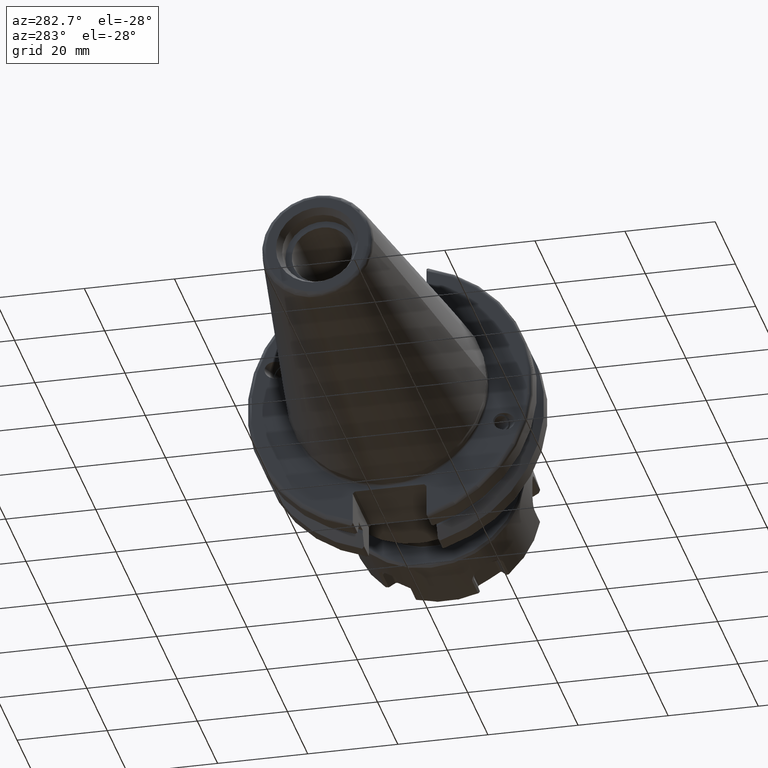
[diagram: clean part render]
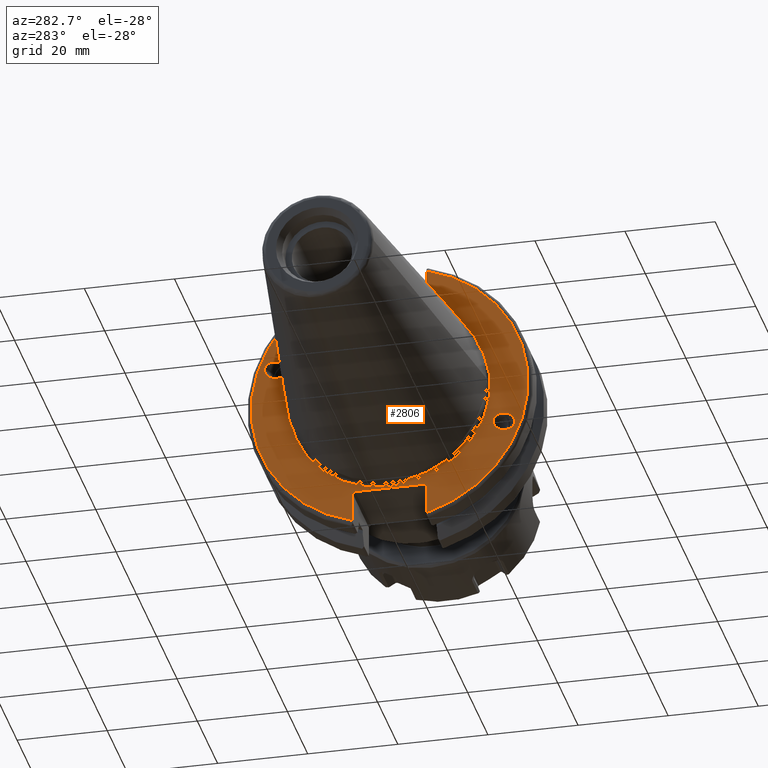
[diagram: same view with one face highlighted and labeled with its STEP entity id]
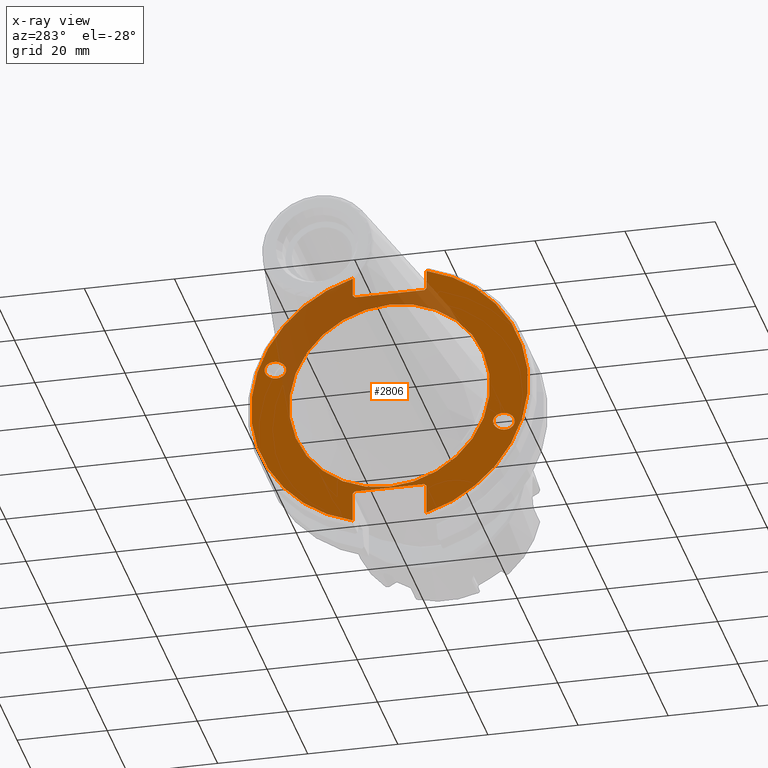
[diagram: x-ray of the same camera — body ghosted, the highlighted face saturated]
A machine part, auxiliary view. The second image highlights one B-rep face of the part: STEP entity #2806.
The next image is the same camera in x-ray: the body ghosted, the highlighted face saturated — about 23% of this face is hidden behind the body in this view.
In plain terms, the highlighted planar face has unit normal (-1, 0, 0).
Its self-contained STEP definition (entity closure, byte-faithful):
#140=ELLIPSE('',#3071,2.44154917752292,2.00000000000001);
#150=ELLIPSE('',#3095,2.44154917752292,2.00000000000001);
#306=FACE_BOUND('',#597,.T.);
#307=FACE_BOUND('',#598,.T.);
#308=FACE_BOUND('',#599,.T.);
#327=PLANE('',#3103);
#423=FACE_OUTER_BOUND('',#596,.T.);
#596=EDGE_LOOP('',(#2079,#2080,#2081,#2082,#2083,#2084,#2085,#2086,#2087,
#2088,#2089,#2090));
#597=EDGE_LOOP('',(#2091));
#598=EDGE_LOOP('',(#2092));
#599=EDGE_LOOP('',(#2093));
#762=LINE('',#4437,#941);
#763=LINE('',#4439,#942);
#764=LINE('',#4441,#943);
#765=LINE('',#4443,#944);
#766=LINE('',#4445,#945);
#767=LINE('',#4449,#946);
#768=LINE('',#4451,#947);
#769=LINE('',#4453,#948);
#770=LINE('',#4455,#949);
#771=LINE('',#4456,#950);
#941=VECTOR('',#3531,10.);
#942=VECTOR('',#3532,10.);
#943=VECTOR('',#3533,10.);
#944=VECTOR('',#3534,10.);
#945=VECTOR('',#3535,10.);
#946=VECTOR('',#3538,10.);
#947=VECTOR('',#3539,10.);
#948=VECTOR('',#3540,10.);
#949=VECTOR('',#3541,10.);
#950=VECTOR('',#3542,10.);
#1134=CIRCLE('',#3101,22.3);
#1136=CIRCLE('',#3104,30.75);
#1137=CIRCLE('',#3105,30.75);
#1264=VERTEX_POINT('',#4372);
#1278=VERTEX_POINT('',#4417);
#1282=VERTEX_POINT('',#4428);
#1283=VERTEX_POINT('',#4433);
#1284=VERTEX_POINT('',#4434);
#1285=VERTEX_POINT('',#4436);
#1286=VERTEX_POINT('',#4438);
#1287=VERTEX_POINT('',#4440);
#1288=VERTEX_POINT('',#4442);
#1289=VERTEX_POINT('',#4444);
#1290=VERTEX_POINT('',#4446);
#1291=VERTEX_POINT('',#4448);
#1292=VERTEX_POINT('',#4450);
#1293=VERTEX_POINT('',#4452);
#1294=VERTEX_POINT('',#4454);
#1553=EDGE_CURVE('',#1264,#1264,#140,.T.);
#1575=EDGE_CURVE('',#1278,#1278,#150,.T.);
#1580=EDGE_CURVE('',#1282,#1282,#1134,.T.);
#1582=EDGE_CURVE('',#1283,#1284,#1136,.T.);
#1583=EDGE_CURVE('',#1283,#1285,#762,.T.);
#1584=EDGE_CURVE('',#1286,#1285,#763,.T.);
#1585=EDGE_CURVE('',#1286,#1287,#764,.T.);
#1586=EDGE_CURVE('',#1288,#1287,#765,.T.);
#1587=EDGE_CURVE('',#1288,#1289,#766,.T.);
#1588=EDGE_CURVE('',#1290,#1289,#1137,.T.);
#1589=EDGE_CURVE('',#1290,#1291,#767,.T.);
#1590=EDGE_CURVE('',#1292,#1291,#768,.T.);
#1591=EDGE_CURVE('',#1292,#1293,#769,.T.);
#1592=EDGE_CURVE('',#1294,#1293,#770,.T.);
#1593=EDGE_CURVE('',#1294,#1284,#771,.T.);
#2079=ORIENTED_EDGE('',*,*,#1582,.F.);
#2080=ORIENTED_EDGE('',*,*,#1583,.T.);
#2081=ORIENTED_EDGE('',*,*,#1584,.F.);
#2082=ORIENTED_EDGE('',*,*,#1585,.T.);
#2083=ORIENTED_EDGE('',*,*,#1586,.F.);
#2084=ORIENTED_EDGE('',*,*,#1587,.T.);
#2085=ORIENTED_EDGE('',*,*,#1588,.F.);
#2086=ORIENTED_EDGE('',*,*,#1589,.T.);
#2087=ORIENTED_EDGE('',*,*,#1590,.F.);
#2088=ORIENTED_EDGE('',*,*,#1591,.T.);
#2089=ORIENTED_EDGE('',*,*,#1592,.F.);
#2090=ORIENTED_EDGE('',*,*,#1593,.T.);
#2091=ORIENTED_EDGE('',*,*,#1553,.T.);
#2092=ORIENTED_EDGE('',*,*,#1575,.T.);
#2093=ORIENTED_EDGE('',*,*,#1580,.F.);
#2806=ADVANCED_FACE('',(#423,#306,#307,#308),#327,.T.);
#3071=AXIS2_PLACEMENT_3D('',#4374,#3455,#3456);
#3095=AXIS2_PLACEMENT_3D('',#4419,#3510,#3511);
#3101=AXIS2_PLACEMENT_3D('',#4430,#3523,#3524);
#3103=AXIS2_PLACEMENT_3D('',#4432,#3527,#3528);
#3104=AXIS2_PLACEMENT_3D('',#4435,#3529,#3530);
#3105=AXIS2_PLACEMENT_3D('',#4447,#3536,#3537);
#3455=DIRECTION('center_axis',(1.,0.,0.));
#3456=DIRECTION('ref_axis',(5.68400912649E-17,-0.939692620785909,-0.342020143325667));
#3510=DIRECTION('center_axis',(1.,0.,0.));
#3511=DIRECTION('ref_axis',(5.68400912649E-17,0.939692620785909,0.342020143325667));
#3523=DIRECTION('center_axis',(-1.,0.,0.));
#3524=DIRECTION('ref_axis',(0.,-1.,1.83697019872103E-16));
#3527=DIRECTION('center_axis',(-1.,0.,0.));
#3528=DIRECTION('ref_axis',(0.,0.,1.));
#3529=DIRECTION('center_axis',(1.,0.,0.));
#3530=DIRECTION('ref_axis',(0.,-1.,1.60812264967664E-16));
#3531=DIRECTION('',(0.,0.,-1.));
#3532=DIRECTION('',(0.,-0.70710678118655,0.707106781186545));
#3533=DIRECTION('',(0.,1.,0.));
#3534=DIRECTION('',(0.,-0.707106781186549,-0.707106781186546));
#3535=DIRECTION('',(0.,0.,1.));
#3536=DIRECTION('center_axis',(1.,0.,0.));
#3537=DIRECTION('ref_axis',(0.,1.,1.60812264967664E-16));
#3538=DIRECTION('',(0.,0.,1.));
#3539=DIRECTION('',(0.,0.707106781186549,-0.707106781186546));
#3540=DIRECTION('',(0.,-1.,0.));
#3541=DIRECTION('',(0.,0.707106781186549,0.707106781186546));
#3542=DIRECTION('',(0.,0.,-1.));
#4372=CARTESIAN_POINT('',(3.175,-23.0773950158153,-8.39948487016));
#4374=CARTESIAN_POINT('Origin',(3.175,-25.3717007612195,-9.23454386979305));
#4417=CARTESIAN_POINT('',(3.175,23.0773950158153,8.39948487016));
#4419=CARTESIAN_POINT('Origin',(3.175,25.3717007612195,9.23454386979306));
#4428=CARTESIAN_POINT('',(3.175,-2.7309623620986E-15,22.3));
#4430=CARTESIAN_POINT('Origin',(3.175,0.,0.));
#4432=CARTESIAN_POINT('Origin',(3.175,31.75,0.));
#4433=CARTESIAN_POINT('',(3.175,-8.18999999999999,29.6392712461019));
#4434=CARTESIAN_POINT('',(3.175,-8.19,-29.6392712461019));
#4435=CARTESIAN_POINT('Origin',(3.175,0.,0.));
#4436=CARTESIAN_POINT('',(3.175,-8.18999999999999,25.5));
#4437=CARTESIAN_POINT('',(3.175,-8.18999999999999,12.5));
#4438=CARTESIAN_POINT('',(3.175,-7.68999999999999,25.));
#4439=CARTESIAN_POINT('',(3.175,8.29500000000007,9.01500000000004));
#4440=CARTESIAN_POINT('',(3.175,7.69,25.));
#4441=CARTESIAN_POINT('',(3.175,15.875,25.));
#4442=CARTESIAN_POINT('',(3.175,8.19,25.5));
#4443=CARTESIAN_POINT('',(3.175,7.58000000000002,24.89));
#4444=CARTESIAN_POINT('',(3.175,8.19,29.6392712461019));
#4445=CARTESIAN_POINT('',(3.175,8.19,12.5));
#4446=CARTESIAN_POINT('',(3.175,8.18999999999999,-29.6392712461019));
#4447=CARTESIAN_POINT('Origin',(3.175,0.,0.));
#4448=CARTESIAN_POINT('',(3.175,8.18999999999999,-23.1));
#4449=CARTESIAN_POINT('',(3.175,8.18999999999999,-11.3));
#4450=CARTESIAN_POINT('',(3.175,7.69,-22.6));
#4451=CARTESIAN_POINT('',(3.175,8.18000000000002,-23.09));
#4452=CARTESIAN_POINT('',(3.175,-7.69,-22.6));
#4453=CARTESIAN_POINT('',(3.175,15.875,-22.6));
#4454=CARTESIAN_POINT('',(3.175,-8.19,-23.1));
#4455=CARTESIAN_POINT('',(3.175,7.69500000000004,-7.21500000000002));
#4456=CARTESIAN_POINT('',(3.175,-8.19,-11.3));